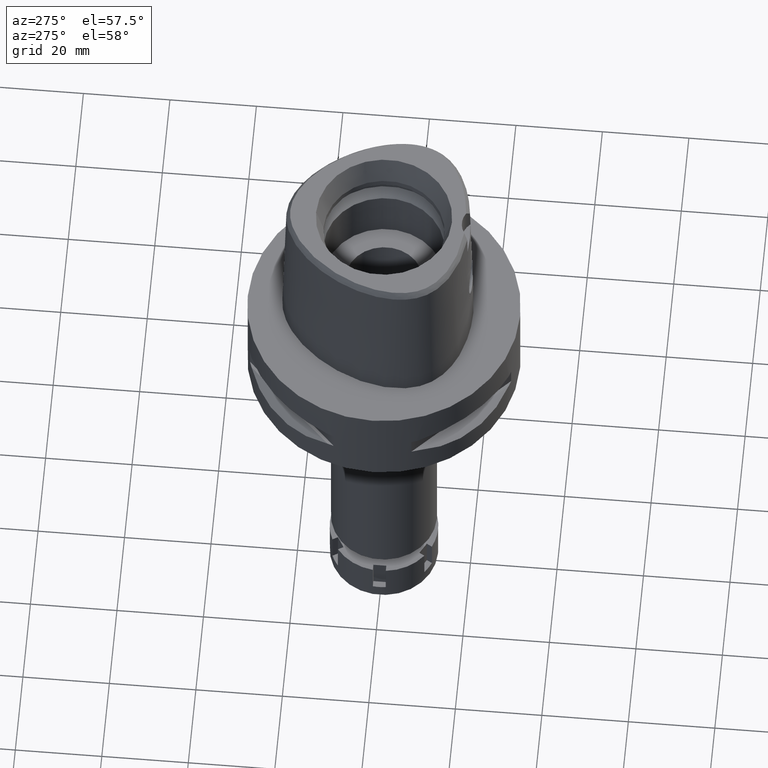
[diagram: clean part render]
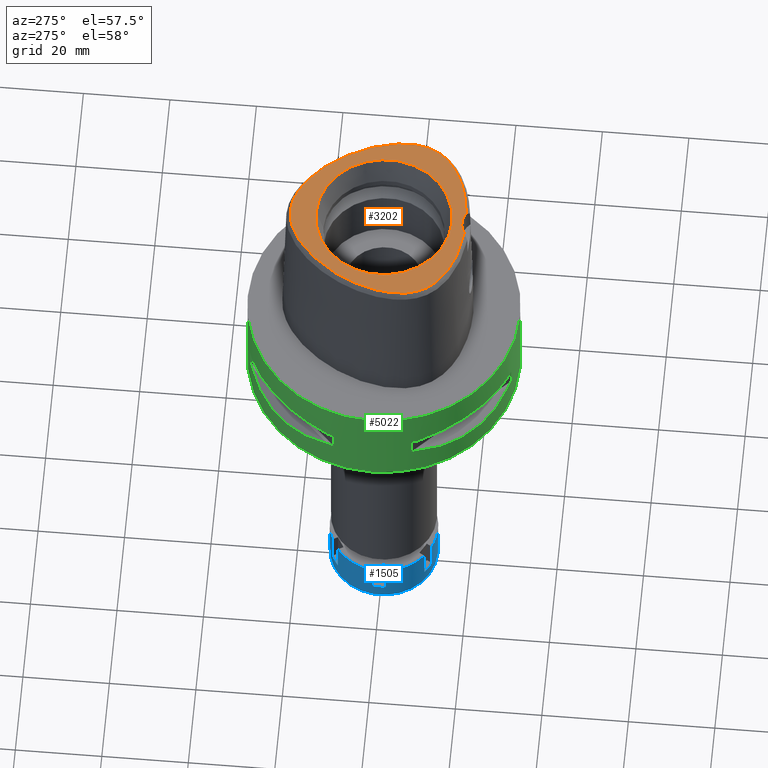
[diagram: same view with three faces highlighted in distinct colors, each labeled with its STEP entity id]
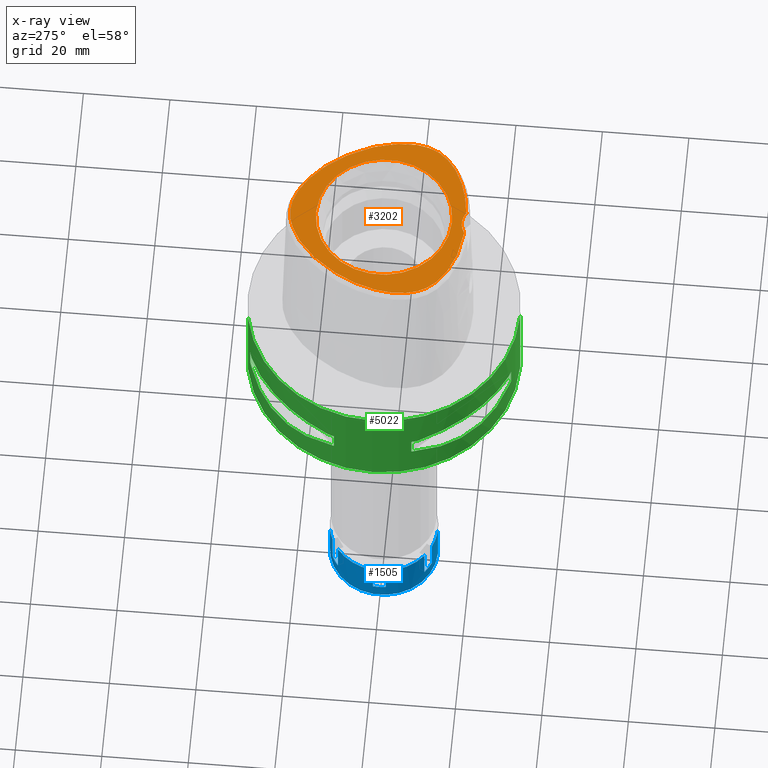
[diagram: x-ray of the same camera — body ghosted, the three highlighted faces saturated]
A machine part, auxiliary view with three faces highlighted in distinct colors.
The next image is the same camera in x-ray (body ghosted, the three faces saturated) — at least one of them is partly hidden behind the body in this view.
Their STEP definitions:

[orange] entity #3202 — the highlighted planar face has unit normal (0, 0, 1).
#28 = EDGE_LOOP ( 'NONE', ( #3176, #3464 ) ) ;
#33 = AXIS2_PLACEMENT_3D ( 'NONE', #2388, #1115, #3232 ) ;
#79 = VERTEX_POINT ( 'NONE', #3053 ) ;
#84 = CARTESIAN_POINT ( 'NONE',  ( 15.72078707640232942, -14.29615620309169621, 37.99999999999786837 ) ) ;
#274 = ORIENTED_EDGE ( 'NONE', *, *, #1234, .F. ) ;
#275 = CARTESIAN_POINT ( 'NONE',  ( -6.188376196366175641, -18.31830638231177844, 37.99999999999905498 ) ) ;
#306 = CARTESIAN_POINT ( 'NONE',  ( -17.91005512243697240, -12.13778127739998602, 38.00000000000429878 ) ) ;
#308 = DIRECTION ( 'NONE',  ( 0.0000000000000000000, 0.0000000000000000000, 1.000000000000000000 ) ) ;
#341 = CARTESIAN_POINT ( 'NONE',  ( 20.36412151360758216, -5.276385427454227894, 37.99999999999434408 ) ) ;
#357 = CARTESIAN_POINT ( 'NONE',  ( -18.24302769442177308, 5.671232572958060381, 38.00000000000056843 ) ) ;
#388 = CARTESIAN_POINT ( 'NONE',  ( -16.36032397154049178, -13.76458520345197556, 38.00000000000538591 ) ) ;
#396 = CARTESIAN_POINT ( 'NONE',  ( 13.40430406168808375, 13.76274261013138478, 37.99999999999766942 ) ) ;
#403 = DIRECTION ( 'NONE',  ( 0.0000000000000000000, 1.000000000000000000, 0.0000000000000000000 ) ) ;
#420 = CARTESIAN_POINT ( 'NONE',  ( -10.48962422759856850, 16.86631853279065751, 38.00000000000543565 ) ) ;
#567 = CARTESIAN_POINT ( 'NONE',  ( -0.6498990081534831154, 21.67378274708348229, 37.99999999999515410 ) ) ;
#696 = B_SPLINE_CURVE_WITH_KNOTS ( 'NONE', 3,
 ( #1614, #1591, #2004, #4221, #4651, #800, #2087, #715, #5017, #2117, #3832, #3410, #1160, #2466, #3799, #745, #1675, #396, #3383, #4166, #3327, #5550, #2877, #4588, #4251, #1183, #4620, #2904, #824, #5098, #774, #2495, #341, #1245, #2062, #3769, #2959, #4676, #2545, #1700, #2144, #5263, #1387, #4784, #3914, #1331, #84, #3046, #3539, #3881, #3436, #3465, #2170, #5154, #959, #2989, #1802, #1299, #2679, #3021 ),
 .UNSPECIFIED., .F., .F.,
 ( 4, 1, 1, 1, 1, 1, 1, 1, 1, 1, 1, 1, 1, 1, 1, 1, 1, 1, 1, 1, 1, 1, 1, 1, 1, 1, 1, 1, 1, 1, 1, 1, 1, 1, 1, 1, 1, 1, 1, 1, 1, 1, 1, 1, 1, 1, 1, 1, 1, 1, 1, 1, 1, 1, 1, 1, 1, 4 ),
 ( 0.0000000000000000000, 0.01775854187129999318, 0.03551708374169992855, 0.05327562561200005486, 0.07103416748239999023, 0.08879270935270000553, 0.1065512512231000519, 0.1243097930933999562, 0.1420683349638000026, 0.1598268768341000179, 0.1775854187044000332, 0.1953439605747999686, 0.2131025024450999839, 0.2308610443155000302, 0.2486195861857999345, 0.2663781280563000120, 0.2841366699266000273, 0.3018952117970000737, 0.3196537536672999780, 0.3374122955377000244, 0.3551708374080000397, 0.3729293792782999439, 0.3906879211486999903, 0.4084464630190000056, 0.4262050048894000520, 0.4439635467596999563, 0.4617220886301000027, 0.4794806305004000180, 0.4972391723707999533, 0.5149977142410999686, 0.5327562561113999839, 0.5505147979818000303, 0.5682733398521000456, 0.5860318817224999810, 0.6037904235927999963, 0.6215489654632000427, 0.6393075073334999470, 0.6570660492038999934, 0.6748245910742000087, 0.6925831329445000240, 0.7103416748149000703, 0.7281002166851999746, 0.7458587585556000210, 0.7636173004259000363, 0.7813758422962999717, 0.7991343841665999870, 0.8168929260370000334, 0.8346514679073000487, 0.8524100097776999840, 0.8701685516479999993, 0.8879270935183000146, 0.9056856353886799660, 0.9234441772589799813, 0.9412027191293600437, 0.9589612609997000270, 0.9767198028700500023, 0.9944783447403919840, 1.000000000000000000 ),
 .UNSPECIFIED. ) ;
#715 = CARTESIAN_POINT ( 'NONE',  ( 4.255661039972427950, 20.86618068829808337, 37.99999999999293010 ) ) ;
#735 = CARTESIAN_POINT ( 'NONE',  ( -16.93638123745181900, -13.22593246128085021, 37.99999999999675282 ) ) ;
#745 = CARTESIAN_POINT ( 'NONE',  ( 11.46587147800059725, 15.92717600802842703, 37.99999999999953104 ) ) ;
#774 = CARTESIAN_POINT ( 'NONE',  ( 20.38292172607782859, -3.276278498261265160, 37.99999999999852918 ) ) ;
#791 = CARTESIAN_POINT ( 'NONE',  ( -19.98419490691485123, -7.809898894995401797, 38.00000000000287059 ) ) ;
#800 = CARTESIAN_POINT ( 'NONE',  ( 2.736932690726774808, 21.34527940056963047, 37.99999999999918998 ) ) ;
#824 = CARTESIAN_POINT ( 'NONE',  ( 20.15982952132271677, -1.007721426051230607, 37.99999999999911893 ) ) ;
#844 = CARTESIAN_POINT ( 'NONE',  ( -13.40435640711438658, 13.76268382997440298, 37.99999999999984368 ) ) ;
#959 = CARTESIAN_POINT ( 'NONE',  ( 7.606839420237586857, -18.00827588386539446, 37.99999999999665334 ) ) ;
#1000 = PLANE ( 'NONE',  #33 ) ;
#1115 = DIRECTION ( 'NONE',  ( 0.0000000000000000000, 0.0000000000000000000, 1.000000000000000000 ) ) ;
#1124 = CARTESIAN_POINT ( 'NONE',  ( -3.522896839654192203, -18.70811514173785639, 37.99999999999594991 ) ) ;
#1160 = CARTESIAN_POINT ( 'NONE',  ( 8.578848111817283240, 18.44609846599041347, 37.99999999999532463 ) ) ;
#1183 = CARTESIAN_POINT ( 'NONE',  ( 19.26272899268398220, 2.870227893749653703, 37.99999999999879208 ) ) ;
#1208 = VERTEX_POINT ( 'NONE', #5518 ) ;
#1209 = CARTESIAN_POINT ( 'NONE',  ( -19.94188961899549284, 0.2242544969876116567, 38.00000000000056133 ) ) ;
#1234 = EDGE_CURVE ( 'NONE', #4028, #2988, #696, .T. ) ;
#1245 = CARTESIAN_POINT ( 'NONE',  ( 20.27923816685401093, -6.179850483268034544, 38.00000000000326850 ) ) ;
#1263 = CARTESIAN_POINT ( 'NONE',  ( -9.524337278001334894, 17.70558492631205993, 37.99999999999950262 ) ) ;
#1299 = CARTESIAN_POINT ( 'NONE',  ( 3.529311563348828784, -18.70747079910202970, 38.00000000000078870 ) ) ;
#1320 = EDGE_LOOP ( 'NONE', ( #274, #2179, #1577 ) ) ;
#1331 = CARTESIAN_POINT ( 'NONE',  ( 16.36283630828310010, -13.76236604535487729, 37.99999999999704414 ) ) ;
#1387 = CARTESIAN_POINT ( 'NONE',  ( 17.91165267838890784, -12.13575389397913717, 38.00000000000568434 ) ) ;
#1527 = CARTESIAN_POINT ( 'NONE',  ( -2.735698246182753479, 21.34559102902670702, 38.00000000000395772 ) ) ;
#1548 = CARTESIAN_POINT ( 'NONE',  ( -18.79649882724703147, 4.256255933891218035, 37.99999999999836575 ) ) ;
#1577 = ORIENTED_EDGE ( 'NONE', *, *, #5223, .F. ) ;
#1581 = CARTESIAN_POINT ( 'NONE',  ( -20.15090095365027878, -7.024227649787052385, 38.00000000000519407 ) ) ;
#1591 = CARTESIAN_POINT ( 'NONE',  ( 0.2185816947241228103, 21.68728795389646891, 37.99999999999909051 ) ) ;
#1614 = CARTESIAN_POINT ( 'NONE',  ( -3.470663397227999930E-11, 21.68728795390000030, 38.00000000000000000 ) ) ;
#1635 = CARTESIAN_POINT ( 'NONE',  ( -12.37132652997469862, -16.34104299087971768, 38.00000000000121503 ) ) ;
#1636 = B_SPLINE_CURVE_WITH_KNOTS ( 'NONE', 3,
 ( #2429, #4978, #1124, #2843, #275, #4158, #5509, #2108, #3377, #1635, #2053, #3737, #2511, #5458, #388, #735, #1994, #306, #4580, #4554, #2029, #3761, #5427, #5482, #791, #1581, #3346, #5009, #2869, #5064, #5394, #2457, #1209, #2926, #2951, #1548, #357, #4644, #4669, #2078, #3264, #4130, #844, #3825, #1695, #420, #1263, #4275, #4692, #2979, #5544, #3402, #2568, #5116, #1527, #3997, #4534, #567, #4841, #4897 ),
 .UNSPECIFIED., .F., .F.,
 ( 4, 1, 1, 1, 1, 1, 1, 1, 1, 1, 1, 1, 1, 1, 1, 1, 1, 1, 1, 1, 1, 1, 1, 1, 1, 1, 1, 1, 1, 1, 1, 1, 1, 1, 1, 1, 1, 1, 1, 1, 1, 1, 1, 1, 1, 1, 1, 1, 1, 1, 1, 1, 1, 1, 1, 1, 1, 4 ),
 ( 0.0000000000000000000, 0.005420919554200098744, 0.02318126027639999531, 0.04094160099879995407, 0.05870194172099996166, 0.07646228244330000035, 0.09422262316550000794, 0.1119829638877999356, 0.1297433046099999432, 0.1475036453321999508, 0.1652639860544999895, 0.1830243267768000281, 0.2007846674991000668, 0.2185450082212999634, 0.2363053489436000021, 0.2540656896658000097, 0.2718260303881000484, 0.2895863711103000560, 0.3073467118325999836, 0.3251070525547999912, 0.3428673932771000299, 0.3606277339994000686, 0.3783880747216000762, 0.3961484154438998928, 0.4139087561661000114, 0.4316690968884000501, 0.4494294376106000577, 0.4671897783328999854, 0.4849501190552000240, 0.5027104597774000316, 0.5204708004996999593, 0.5382311412219000779, 0.5559914819442000056, 0.5737518226664000132, 0.5915121633886999408, 0.6092725041108999484, 0.6270328448331999871, 0.6447931855555000258, 0.6625535262777000334, 0.6803138669999999610, 0.6980742077221999686, 0.7158345484445000073, 0.7335948891667000149, 0.7513552298890000536, 0.7691155706112000612, 0.7868759113336000199, 0.8046362520558000275, 0.8223965927780999552, 0.8401569335002999628, 0.8579172742224999704, 0.8756776149448000091, 0.8934379556670000166, 0.9111982963893099363, 0.9289586371115700070, 0.9467189778338299666, 0.9644793185560800453, 0.9822396592783400049, 1.000000000000000000 ),
 .UNSPECIFIED. ) ;
#1675 = CARTESIAN_POINT ( 'NONE',  ( 12.44125753246307475, 14.89118158853244545, 37.99999999999464251 ) ) ;
#1695 = CARTESIAN_POINT ( 'NONE',  ( -11.46564124494353898, 15.92741340513042658, 37.99999999999533173 ) ) ;
#1700 = CARTESIAN_POINT ( 'NONE',  ( 18.99619228226660539, -10.46780014453487340, 37.99999999999862865 ) ) ;
#1717 = EDGE_CURVE ( 'NONE', #4299, #4028, #1636, .T. ) ;
#1802 = CARTESIAN_POINT ( 'NONE',  ( 4.715576077241841801, -18.56597918135627978, 37.99999999999164402 ) ) ;
#1994 = CARTESIAN_POINT ( 'NONE',  ( -17.45119705494453655, -12.68365517585878877, 38.00000000000417089 ) ) ;
#2004 = CARTESIAN_POINT ( 'NONE',  ( 0.6513209347955825068, 21.67370899611362489, 38.00000000000043343 ) ) ;
#2029 = CARTESIAN_POINT ( 'NONE',  ( -18.99520880204266504, -10.46968343926507927, 38.00000000000586198 ) ) ;
#2053 = CARTESIAN_POINT ( 'NONE',  ( -13.33457781969798894, -15.85148397417350807, 38.00000000000213163 ) ) ;
#2062 = CARTESIAN_POINT ( 'NONE',  ( 20.15127154947472832, -7.022178451341724248, 38.00000000000136424 ) ) ;
#2078 = CARTESIAN_POINT ( 'NONE',  ( -16.09805956313385167, 9.908742513516966000, 38.00000000000242295 ) ) ;
#2087 = CARTESIAN_POINT ( 'NONE',  ( 3.482188079160064120, 21.13472718027785291, 37.99999999999235456 ) ) ;
#2108 = CARTESIAN_POINT ( 'NONE',  ( -10.17136073855316347, -17.24644253470267685, 38.00000000000154898 ) ) ;
#2117 = CARTESIAN_POINT ( 'NONE',  ( 5.894487344450838329, 20.13186406532411610, 37.99999999999071321 ) ) ;
#2144 = CARTESIAN_POINT ( 'NONE',  ( 18.67722910598513408, -11.03372143228007474, 38.00000000000263611 ) ) ;
#2170 = CARTESIAN_POINT ( 'NONE',  ( 10.17751632997955369, -17.24426134458984805, 37.99999999999234035 ) ) ;
#2179 = ORIENTED_EDGE ( 'NONE', *, *, #1717, .F. ) ;
#2388 = CARTESIAN_POINT ( 'NONE',  ( 0.0000000000000000000, 0.0000000000000000000, 38.00000000000000000 ) ) ;
#2429 = CARTESIAN_POINT ( 'NONE',  ( -2.682279906006999948, -18.78035848609999903, 38.00000000000000000 ) ) ;
#2457 = CARTESIAN_POINT ( 'NONE',  ( -20.16012968311730447, -1.009698174524227943, 38.00000000000265743 ) ) ;
#2466 = CARTESIAN_POINT ( 'NONE',  ( 9.524842839488838919, 17.70516372194470023, 38.00000000000159162 ) ) ;
#2495 = CARTESIAN_POINT ( 'NONE',  ( 20.40062138795185831, -4.309334958867604648, 38.00000000000292033 ) ) ;
#2511 = CARTESIAN_POINT ( 'NONE',  ( -15.00295592773690601, -14.82617991125929002, 38.00000000000457590 ) ) ;
#2545 = CARTESIAN_POINT ( 'NONE',  ( 19.28677546797288755, -9.867757137506341536, 37.99999999999842970 ) ) ;
#2568 = CARTESIAN_POINT ( 'NONE',  ( -4.254559144977749341, 20.86660163696912207, 37.99999999999319300 ) ) ;
#2679 = CARTESIAN_POINT ( 'NONE',  ( 2.845098933833467569, -18.76733062686171039, 37.99999999999801048 ) ) ;
#2773 = FACE_BOUND ( 'NONE', #28, .T. ) ;
#2833 = CARTESIAN_POINT ( 'NONE',  ( 0.0000000000000000000, 0.0000000000000000000, 38.00000000000000000 ) ) ;
#2843 = CARTESIAN_POINT ( 'NONE',  ( -4.706994425064479515, -18.56721852572920284, 38.00000000000706990 ) ) ;
#2869 = CARTESIAN_POINT ( 'NONE',  ( -20.40060226222697537, -4.311417605381627105, 38.00000000000179057 ) ) ;
#2877 = CARTESIAN_POINT ( 'NONE',  ( 17.60373714028315106, 7.099883643192963945, 37.99999999999521805 ) ) ;
#2904 = CARTESIAN_POINT ( 'NONE',  ( 19.94150023627768675, 0.2261566111946422819, 38.00000000000073896 ) ) ;
#2916 = DIRECTION ( 'NONE',  ( 0.0000000000000000000, -1.000000000000000000, 0.0000000000000000000 ) ) ;
#2926 = CARTESIAN_POINT ( 'NONE',  ( -19.64434054693159482, 1.520253387635855935, 37.99999999999401723 ) ) ;
#2951 = CARTESIAN_POINT ( 'NONE',  ( -19.26324493738854571, 2.868570891456371896, 38.00000000000054712 ) ) ;
#2959 = CARTESIAN_POINT ( 'NONE',  ( 19.78323211892716316, -8.541156231035650137, 37.99999999999796785 ) ) ;
#2979 = CARTESIAN_POINT ( 'NONE',  ( -6.759433772717006406, 19.65454812513149108, 37.99999999999430145 ) ) ;
#2988 = VERTEX_POINT ( 'NONE', #3776 ) ;
#2989 = CARTESIAN_POINT ( 'NONE',  ( 6.196495988004087074, -18.31673538864638928, 37.99999999999992895 ) ) ;
#3021 = CARTESIAN_POINT ( 'NONE',  ( 2.682287482605000051, -18.78036330228999873, 38.00000000000000000 ) ) ;
#3046 = CARTESIAN_POINT ( 'NONE',  ( 15.00628712263287490, -14.82385870794858462, 37.99999999998909317 ) ) ;
#3053 = CARTESIAN_POINT ( 'NONE',  ( 0.0000000000000000000, -15.71487483155999776, 38.00000000000000000 ) ) ;
#3171 = FACE_OUTER_BOUND ( 'NONE', #1320, .T. ) ;
#3176 = ORIENTED_EDGE ( 'NONE', *, *, #4739, .F. ) ;
#3200 = EDGE_CURVE ( 'NONE', #1208, #79, #5158, .T. ) ;
#3202 = ADVANCED_FACE ( 'NONE', ( #3171, #2773 ), #1000, .T. ) ;
#3232 = DIRECTION ( 'NONE',  ( 1.000000000000000000, 0.0000000000000000000, 0.0000000000000000000 ) ) ;
#3264 = CARTESIAN_POINT ( 'NONE',  ( -15.24692477332546581, 11.25717358966499404, 38.00000000000522249 ) ) ;
#3327 = CARTESIAN_POINT ( 'NONE',  ( 16.09765529146523733, 9.909410920132719625, 37.99999999999265299 ) ) ;
#3346 = CARTESIAN_POINT ( 'NONE',  ( -20.27898581532539168, -6.181921586189740303, 37.99999999999997158 ) ) ;
#3366 = AXIS2_PLACEMENT_3D ( 'NONE', #2833, #5053, #2916 ) ;
#3377 = CARTESIAN_POINT ( 'NONE',  ( -11.31790883121150770, -16.80796958613568393, 37.99999999999768363 ) ) ;
#3383 = CARTESIAN_POINT ( 'NONE',  ( 14.34383722811319473, 12.54786717290211584, 37.99999999999371170 ) ) ;
#3402 = CARTESIAN_POINT ( 'NONE',  ( -5.058220461389485223, 20.53445508814432330, 38.00000000000070344 ) ) ;
#3410 = CARTESIAN_POINT ( 'NONE',  ( 7.655962789343639940, 19.09402979099830944, 38.00000000000166978 ) ) ;
#3417 = CARTESIAN_POINT ( 'NONE',  ( 0.0000000000000000000, 0.0000000000000000000, 38.00000000000000000 ) ) ;
#3436 = CARTESIAN_POINT ( 'NONE',  ( 12.37622418510146183, -16.33871033285755914, 37.99999999999547384 ) ) ;
#3464 = ORIENTED_EDGE ( 'NONE', *, *, #3200, .F. ) ;
#3465 = CARTESIAN_POINT ( 'NONE',  ( 11.32341394162874515, -16.80569392800287076, 37.99999999999108979 ) ) ;
#3486 = CARTESIAN_POINT ( 'NONE',  ( -2.682279906006999948, -18.78035848609999903, 38.00000000000000000 ) ) ;
#3539 = CARTESIAN_POINT ( 'NONE',  ( 14.21382211798846917, -15.34284287400694247, 37.99999999999710099 ) ) ;
#3737 = CARTESIAN_POINT ( 'NONE',  ( -14.21001600787826646, -15.34519100085697829, 37.99999999999928946 ) ) ;
#3761 = CARTESIAN_POINT ( 'NONE',  ( -19.28591707036567016, -9.869682450886354985, 37.99999999999527489 ) ) ;
#3769 = CARTESIAN_POINT ( 'NONE',  ( 19.98468477323076442, -7.807876343103687056, 37.99999999999347722 ) ) ;
#3776 = CARTESIAN_POINT ( 'NONE',  ( 2.682287482605000051, -18.78036330228999873, 38.00000000000000000 ) ) ;
#3799 = CARTESIAN_POINT ( 'NONE',  ( 10.48999540691338161, 16.86597469870024923, 37.99999999999693756 ) ) ;
#3825 = CARTESIAN_POINT ( 'NONE',  ( -12.44116897271067756, 14.89128547409919356, 38.00000000000249401 ) ) ;
#3832 = CARTESIAN_POINT ( 'NONE',  ( 6.760281394351546957, 19.65404668909912189, 37.99999999999734968 ) ) ;
#3881 = CARTESIAN_POINT ( 'NONE',  ( 13.33890749495965267, -15.84912955619992303, 37.99999999999315037 ) ) ;
#3914 = CARTESIAN_POINT ( 'NONE',  ( 16.93855157778266474, -13.22377441789277874, 37.99999999999524647 ) ) ;
#3997 = CARTESIAN_POINT ( 'NONE',  ( -2.017025177696412541, 21.50280829367946112, 37.99999999999697309 ) ) ;
#4028 = VERTEX_POINT ( 'NONE', #4104 ) ;
#4076 = DIRECTION ( 'NONE',  ( 0.0000000000000000000, 1.000000000000000000, 0.0000000000000000000 ) ) ;
#4104 = CARTESIAN_POINT ( 'NONE',  ( -3.470663397227999930E-11, 21.68728795390000030, 38.00000000000000000 ) ) ;
#4130 = CARTESIAN_POINT ( 'NONE',  ( -14.34402387965958425, 12.54761970512458902, 38.00000000000186873 ) ) ;
#4158 = CARTESIAN_POINT ( 'NONE',  ( -7.599370508970772597, -18.01010694911701293, 38.00000000000555644 ) ) ;
#4166 = CARTESIAN_POINT ( 'NONE',  ( 15.24661770199256061, 11.25762885478087938, 37.99999999999820233 ) ) ;
#4221 = CARTESIAN_POINT ( 'NONE',  ( 1.325020189552825967, 21.61081414409370538, 37.99999999999596412 ) ) ;
#4251 = CARTESIAN_POINT ( 'NONE',  ( 18.79595068776453104, 4.257753965102360816, 37.99999999999854339 ) ) ;
#4257 = DIRECTION ( 'NONE',  ( 0.0000000000000000000, 0.0000000000000000000, 1.000000000000000000 ) ) ;
#4268 = AXIS2_PLACEMENT_3D ( 'NONE', #5013, #308, #4076 ) ;
#4275 = CARTESIAN_POINT ( 'NONE',  ( -8.578220530113673803, 18.44656747109344153, 38.00000000000217426 ) ) ;
#4299 = VERTEX_POINT ( 'NONE', #3486 ) ;
#4361 = CIRCLE ( 'NONE', #4268, 5.000000000000000888 ) ;
#4534 = CARTESIAN_POINT ( 'NONE',  ( -1.323674540693972945, 21.61098849315968806, 38.00000000000163425 ) ) ;
#4554 = CARTESIAN_POINT ( 'NONE',  ( -18.67608643721881023, -11.03561202290776144, 37.99999999999932498 ) ) ;
#4580 = CARTESIAN_POINT ( 'NONE',  ( -18.31748213707681572, -11.58791794387864016, 37.99999999999729994 ) ) ;
#4588 = CARTESIAN_POINT ( 'NONE',  ( 18.24247239569745460, 5.672548708071999179, 37.99999999999782574 ) ) ;
#4620 = CARTESIAN_POINT ( 'NONE',  ( 19.64387775268512826, 1.522048414458223364, 37.99999999999723599 ) ) ;
#4644 = CARTESIAN_POINT ( 'NONE',  ( -17.60426951087019276, 7.098774535281792808, 38.00000000000088818 ) ) ;
#4651 = CARTESIAN_POINT ( 'NONE',  ( 2.018320379028521572, 21.50256508436072167, 37.99999999999425881 ) ) ;
#4669 = CARTESIAN_POINT ( 'NONE',  ( -16.88647904405455691, 8.517821442302757617, 38.00000000000560618 ) ) ;
#4676 = CARTESIAN_POINT ( 'NONE',  ( 19.54993126781950252, -9.226212439885943084, 37.99999999999590017 ) ) ;
#4692 = CARTESIAN_POINT ( 'NONE',  ( -7.655222869372122929, 19.09452359226416718, 37.99999999999541700 ) ) ;
#4739 = EDGE_CURVE ( 'NONE', #79, #1208, #5250, .T. ) ;
#4784 = CARTESIAN_POINT ( 'NONE',  ( 17.45306278053535820, -12.68156296993468146, 37.99999999999722888 ) ) ;
#4841 = CARTESIAN_POINT ( 'NONE',  ( -0.2181979014508441672, 21.68728795389390740, 37.99999999999836575 ) ) ;
#4878 = AXIS2_PLACEMENT_3D ( 'NONE', #3417, #4257, #403 ) ;
#4897 = CARTESIAN_POINT ( 'NONE',  ( -3.470663397227999930E-11, 21.68728795390000030, 38.00000000000000000 ) ) ;
#4978 = CARTESIAN_POINT ( 'NONE',  ( -2.841965291530533566, -18.76757795571699816, 37.99999999999850786 ) ) ;
#5009 = CARTESIAN_POINT ( 'NONE',  ( -20.36398648679344348, -5.278470727085266212, 37.99999999999601386 ) ) ;
#5013 = CARTESIAN_POINT ( 'NONE',  ( 0.0000000000000000000, -23.00000000000000000, 38.00000000000000000 ) ) ;
#5017 = CARTESIAN_POINT ( 'NONE',  ( 5.059249257020709045, 20.53399274679074082, 37.99999999999307931 ) ) ;
#5053 = DIRECTION ( 'NONE',  ( 0.0000000000000000000, 0.0000000000000000000, 1.000000000000000000 ) ) ;
#5064 = CARTESIAN_POINT ( 'NONE',  ( -20.38301517462939216, -3.278344853327830322, 38.00000000000496669 ) ) ;
#5098 = CARTESIAN_POINT ( 'NONE',  ( 20.30478359881593775, -2.175347700950313712, 37.99999999999387512 ) ) ;
#5116 = CARTESIAN_POINT ( 'NONE',  ( -3.481017203588782305, 21.13509756881435919, 37.99999999999538858 ) ) ;
#5154 = CARTESIAN_POINT ( 'NONE',  ( 8.936919536467122782, -17.64796721715696393, 37.99999999999626965 ) ) ;
#5158 = CIRCLE ( 'NONE', #4878, 15.71487483155999776 ) ;
#5223 = EDGE_CURVE ( 'NONE', #2988, #4299, #4361, .T. ) ;
#5250 = CIRCLE ( 'NONE', #3366, 15.71487483155999776 ) ;
#5263 = CARTESIAN_POINT ( 'NONE',  ( 18.31883910943392380, -11.58595831188296188, 37.99999999999462830 ) ) ;
#5394 = CARTESIAN_POINT ( 'NONE',  ( -20.30498420087106837, -2.177378896258387986, 38.00000000000387246 ) ) ;
#5427 = CARTESIAN_POINT ( 'NONE',  ( -19.54919922641949626, -9.228169790568482966, 38.00000000000306954 ) ) ;
#5458 = CARTESIAN_POINT ( 'NONE',  ( -15.71788912669348726, -14.29843101565845664, 37.99999999999736389 ) ) ;
#5482 = CARTESIAN_POINT ( 'NONE',  ( -19.78262210840617286, -8.543146992552619778, 38.00000000000316902 ) ) ;
#5509 = CARTESIAN_POINT ( 'NONE',  ( -8.930096025510042779, -17.65000298921500388, 38.00000000000387246 ) ) ;
#5518 = CARTESIAN_POINT ( 'NONE',  ( 0.0000000000000000000, 15.71487483155999776, 38.00000000000000000 ) ) ;
#5544 = CARTESIAN_POINT ( 'NONE',  ( -5.893543501601018697, 20.13235399351747290, 38.00000000000115108 ) ) ;
#5550 = CARTESIAN_POINT ( 'NONE',  ( 16.88599964843549728, 8.518708218770218110, 37.99999999999972289 ) ) ;

[blue] entity #1505 — the highlighted cylindrical surface (partial cylindrical patch) has radius 12.5 mm, axis along (0, 0, -1).
#34 = CARTESIAN_POINT ( 'NONE',  ( 0.0000000000000000000, -12.50000000000000000, 0.0000000000000000000 ) ) ;
#50 = ORIENTED_EDGE ( 'NONE', *, *, #3774, .F. ) ;
#54 = ORIENTED_EDGE ( 'NONE', *, *, #511, .T. ) ;
#153 = ORIENTED_EDGE ( 'NONE', *, *, #3092, .T. ) ;
#186 = AXIS2_PLACEMENT_3D ( 'NONE', #5285, #4889, #1962 ) ;
#191 = DIRECTION ( 'NONE',  ( -0.6003099942937818456, 0.7997674104081758939, 0.0000000000000000000 ) ) ;
#202 = CARTESIAN_POINT ( 'NONE',  ( -12.40967364599000078, 1.500000000000000000, 0.0000000000000000000 ) ) ;
#317 = CARTESIAN_POINT ( 'NONE',  ( -4.905798717318000435, 11.49709263010000093, -7.000000000000000000 ) ) ;
#324 = ORIENTED_EDGE ( 'NONE', *, *, #4636, .F. ) ;
#414 = EDGE_CURVE ( 'NONE', #3960, #1352, #3430, .T. ) ;
#458 = DIRECTION ( 'NONE',  ( 0.0000000000000000000, 0.0000000000000000000, -1.000000000000000000 ) ) ;
#511 = EDGE_CURVE ( 'NONE', #1938, #4883, #1891, .T. ) ;
#550 = DIRECTION ( 'NONE',  ( -0.9927738916792689938, 0.1199999999999962208, 0.0000000000000000000 ) ) ;
#560 = ORIENTED_EDGE ( 'NONE', *, *, #4214, .F. ) ;
#700 = DIRECTION ( 'NONE',  ( 0.0000000000000000000, 0.0000000000000000000, 1.000000000000000000 ) ) ;
#722 = CARTESIAN_POINT ( 'NONE',  ( 0.0000000000000000000, 0.0000000000000000000, 0.0000000000000000000 ) ) ;
#723 = EDGE_CURVE ( 'NONE', #2165, #5545, #1894, .T. ) ;
#763 = VERTEX_POINT ( 'NONE', #4129 ) ;
#772 = AXIS2_PLACEMENT_3D ( 'NONE', #4683, #1365, #2154 ) ;
#843 = CIRCLE ( 'NONE', #3710, 12.50000000000000355 ) ;
#847 = CARTESIAN_POINT ( 'NONE',  ( -12.40967364599000078, -1.500000000000000000, -7.000000000000000000 ) ) ;
#902 = ORIENTED_EDGE ( 'NONE', *, *, #5389, .T. ) ;
#948 = CIRCLE ( 'NONE', #4446, 12.50000000000000000 ) ;
#1005 = EDGE_LOOP ( 'NONE', ( #50, #153, #4485, #5279, #3672, #4958, #324, #4065, #2839, #4755, #560, #902, #4917, #1820, #1293, #54 ) ) ;
#1031 = VECTOR ( 'NONE', #5035, 1000.000000000000000 ) ;
#1045 = CARTESIAN_POINT ( 'NONE',  ( -7.503874928671999456, 9.997092630101999333, -7.000000000000000000 ) ) ;
#1114 = VECTOR ( 'NONE', #1923, 1000.000000000000000 ) ;
#1143 = DIRECTION ( 'NONE',  ( 0.0000000000000000000, 0.0000000000000000000, -1.000000000000000000 ) ) ;
#1293 = ORIENTED_EDGE ( 'NONE', *, *, #1776, .F. ) ;
#1303 = LINE ( 'NONE', #34, #1757 ) ;
#1352 = VERTEX_POINT ( 'NONE', #2628 ) ;
#1365 = DIRECTION ( 'NONE',  ( 0.0000000000000000000, 0.0000000000000000000, -1.000000000000000000 ) ) ;
#1390 = DIRECTION ( 'NONE',  ( -0.6003099942937818456, -0.7997674104081758939, 0.0000000000000000000 ) ) ;
#1441 = DIRECTION ( 'NONE',  ( 0.0000000000000000000, 0.0000000000000000000, 1.000000000000000000 ) ) ;
#1505 = ADVANCED_FACE ( 'NONE', ( #3646 ), #4492, .T. ) ;
#1519 = VERTEX_POINT ( 'NONE', #1521 ) ;
#1521 = CARTESIAN_POINT ( 'NONE',  ( -4.905798717319999724, -11.49709263010000093, -7.000000000000000000 ) ) ;
#1571 = AXIS2_PLACEMENT_3D ( 'NONE', #3105, #5238, #1390 ) ;
#1669 = CIRCLE ( 'NONE', #772, 12.49999999999999822 ) ;
#1757 = VECTOR ( 'NONE', #458, 1000.000000000000000 ) ;
#1776 = EDGE_CURVE ( 'NONE', #1938, #4587, #4952, .T. ) ;
#1820 = ORIENTED_EDGE ( 'NONE', *, *, #3405, .T. ) ;
#1887 = CARTESIAN_POINT ( 'NONE',  ( -12.40967364599000078, -1.500000000000000000, 0.0000000000000000000 ) ) ;
#1891 = CIRCLE ( 'NONE', #2801, 12.50000000000000178 ) ;
#1894 = CIRCLE ( 'NONE', #3516, 12.50000000000000000 ) ;
#1912 = VECTOR ( 'NONE', #3591, 1000.000000000000000 ) ;
#1923 = DIRECTION ( 'NONE',  ( 0.0000000000000000000, 0.0000000000000000000, -1.000000000000000000 ) ) ;
#1938 = VERTEX_POINT ( 'NONE', #3220 ) ;
#1941 = DIRECTION ( 'NONE',  ( 0.0000000000000000000, 0.0000000000000000000, -1.000000000000000000 ) ) ;
#1962 = DIRECTION ( 'NONE',  ( 0.0000000000000000000, -1.000000000000000000, 0.0000000000000000000 ) ) ;
#2105 = CIRCLE ( 'NONE', #2564, 12.50000000000000000 ) ;
#2154 = DIRECTION ( 'NONE',  ( -0.3924638973856165447, -0.9197674104081380309, 0.0000000000000000000 ) ) ;
#2165 = VERTEX_POINT ( 'NONE', #2381 ) ;
#2172 = AXIS2_PLACEMENT_3D ( 'NONE', #3599, #1941, #2318 ) ;
#2318 = DIRECTION ( 'NONE',  ( 0.0000000000000000000, -1.000000000000000000, 0.0000000000000000000 ) ) ;
#2337 = CARTESIAN_POINT ( 'NONE',  ( 0.0000000000000000000, -12.50000000000000000, 0.0000000000000000000 ) ) ;
#2381 = CARTESIAN_POINT ( 'NONE',  ( 0.0000000000000000000, 12.50000000000000000, -10.30000000000000071 ) ) ;
#2445 = DIRECTION ( 'NONE',  ( 0.0000000000000000000, 0.0000000000000000000, -1.000000000000000000 ) ) ;
#2491 = CARTESIAN_POINT ( 'NONE',  ( -12.40967364599000078, 1.500000000000000000, -7.000000000000000000 ) ) ;
#2527 = LINE ( 'NONE', #4571, #2659 ) ;
#2564 = AXIS2_PLACEMENT_3D ( 'NONE', #3255, #4429, #550 ) ;
#2573 = DIRECTION ( 'NONE',  ( 0.0000000000000000000, 0.0000000000000000000, 1.000000000000000000 ) ) ;
#2586 = CARTESIAN_POINT ( 'NONE',  ( 0.0000000000000000000, -12.50000000000000000, -10.30000000000000071 ) ) ;
#2628 = CARTESIAN_POINT ( 'NONE',  ( -4.905798717319999724, -11.49709263010000093, 0.0000000000000000000 ) ) ;
#2656 = CARTESIAN_POINT ( 'NONE',  ( 0.0000000000000000000, 0.0000000000000000000, -10.30000000000000071 ) ) ;
#2659 = VECTOR ( 'NONE', #700, 1000.000000000000000 ) ;
#2801 = AXIS2_PLACEMENT_3D ( 'NONE', #2854, #3191, #191 ) ;
#2803 = CARTESIAN_POINT ( 'NONE',  ( -12.40967364599000078, -1.500000000000000000, -7.000000000000000000 ) ) ;
#2839 = ORIENTED_EDGE ( 'NONE', *, *, #4494, .F. ) ;
#2854 = CARTESIAN_POINT ( 'NONE',  ( 0.0000000000000000000, 0.0000000000000000000, -7.000000000000000000 ) ) ;
#2866 = VERTEX_POINT ( 'NONE', #1887 ) ;
#2896 = VECTOR ( 'NONE', #1441, 1000.000000000000000 ) ;
#2968 = VERTEX_POINT ( 'NONE', #4995 ) ;
#3008 = VECTOR ( 'NONE', #3793, 1000.000000000000000 ) ;
#3092 = EDGE_CURVE ( 'NONE', #2968, #3931, #843, .T. ) ;
#3105 = CARTESIAN_POINT ( 'NONE',  ( 0.0000000000000000000, 0.0000000000000000000, 0.0000000000000000000 ) ) ;
#3191 = DIRECTION ( 'NONE',  ( 0.0000000000000000000, 0.0000000000000000000, -1.000000000000000000 ) ) ;
#3220 = CARTESIAN_POINT ( 'NONE',  ( -7.503874928671999456, 9.997092630101999333, -7.000000000000000000 ) ) ;
#3255 = CARTESIAN_POINT ( 'NONE',  ( 0.0000000000000000000, 0.0000000000000000000, 0.0000000000000000000 ) ) ;
#3298 = CARTESIAN_POINT ( 'NONE',  ( 0.0000000000000000000, 12.50000000000000000, 0.0000000000000000000 ) ) ;
#3310 = DIRECTION ( 'NONE',  ( -0.9927738916792689938, -0.1199999999999962208, 0.0000000000000000000 ) ) ;
#3322 = CARTESIAN_POINT ( 'NONE',  ( 0.0000000000000000000, 12.50000000000000000, 0.0000000000000000000 ) ) ;
#3337 = CARTESIAN_POINT ( 'NONE',  ( -7.503874928671999456, 9.997092630101999333, 0.0000000000000000000 ) ) ;
#3378 = CARTESIAN_POINT ( 'NONE',  ( -7.503874928671999456, -9.997092630101999333, 0.0000000000000000000 ) ) ;
#3405 = EDGE_CURVE ( 'NONE', #3820, #4587, #2105, .T. ) ;
#3430 = CIRCLE ( 'NONE', #2172, 12.50000000000000000 ) ;
#3437 = EDGE_CURVE ( 'NONE', #3820, #5212, #4059, .T. ) ;
#3506 = CARTESIAN_POINT ( 'NONE',  ( -7.503874928671999456, -9.997092630101999333, 0.0000000000000000000 ) ) ;
#3516 = AXIS2_PLACEMENT_3D ( 'NONE', #2656, #2573, #4304 ) ;
#3532 = CIRCLE ( 'NONE', #1571, 12.50000000000000178 ) ;
#3591 = DIRECTION ( 'NONE',  ( 0.0000000000000000000, 0.0000000000000000000, -1.000000000000000000 ) ) ;
#3599 = CARTESIAN_POINT ( 'NONE',  ( 0.0000000000000000000, 0.0000000000000000000, 0.0000000000000000000 ) ) ;
#3646 = FACE_OUTER_BOUND ( 'NONE', #1005, .T. ) ;
#3649 = LINE ( 'NONE', #3322, #1031 ) ;
#3669 = EDGE_CURVE ( 'NONE', #4099, #2866, #3532, .T. ) ;
#3672 = ORIENTED_EDGE ( 'NONE', *, *, #5049, .F. ) ;
#3710 = AXIS2_PLACEMENT_3D ( 'NONE', #722, #2445, #5103 ) ;
#3774 = EDGE_CURVE ( 'NONE', #2968, #4883, #4017, .T. ) ;
#3793 = DIRECTION ( 'NONE',  ( 0.0000000000000000000, 0.0000000000000000000, 1.000000000000000000 ) ) ;
#3820 = VERTEX_POINT ( 'NONE', #3918 ) ;
#3918 = CARTESIAN_POINT ( 'NONE',  ( -12.40967364599000078, 1.500000000000000000, 0.0000000000000000000 ) ) ;
#3931 = VERTEX_POINT ( 'NONE', #3298 ) ;
#3960 = VERTEX_POINT ( 'NONE', #2337 ) ;
#4017 = LINE ( 'NONE', #5289, #1912 ) ;
#4059 = LINE ( 'NONE', #202, #1114 ) ;
#4065 = ORIENTED_EDGE ( 'NONE', *, *, #4802, .T. ) ;
#4099 = VERTEX_POINT ( 'NONE', #3378 ) ;
#4129 = CARTESIAN_POINT ( 'NONE',  ( -7.503874928671999456, -9.997092630101999333, -7.000000000000000000 ) ) ;
#4193 = LINE ( 'NONE', #847, #3008 ) ;
#4214 = EDGE_CURVE ( 'NONE', #4326, #2866, #4193, .T. ) ;
#4304 = DIRECTION ( 'NONE',  ( 0.0000000000000000000, 1.000000000000000000, 0.0000000000000000000 ) ) ;
#4326 = VERTEX_POINT ( 'NONE', #2803 ) ;
#4429 = DIRECTION ( 'NONE',  ( 0.0000000000000000000, 0.0000000000000000000, -1.000000000000000000 ) ) ;
#4446 = AXIS2_PLACEMENT_3D ( 'NONE', #5473, #1143, #3310 ) ;
#4485 = ORIENTED_EDGE ( 'NONE', *, *, #5184, .T. ) ;
#4492 = CYLINDRICAL_SURFACE ( 'NONE', #186, 12.50000000000000000 ) ;
#4494 = EDGE_CURVE ( 'NONE', #4099, #763, #4809, .T. ) ;
#4571 = CARTESIAN_POINT ( 'NONE',  ( -4.905798717319999724, -11.49709263010000093, -7.000000000000000000 ) ) ;
#4587 = VERTEX_POINT ( 'NONE', #3337 ) ;
#4636 = EDGE_CURVE ( 'NONE', #1519, #1352, #2527, .T. ) ;
#4683 = CARTESIAN_POINT ( 'NONE',  ( 0.0000000000000000000, 0.0000000000000000000, -7.000000000000000000 ) ) ;
#4714 = VECTOR ( 'NONE', #5232, 1000.000000000000000 ) ;
#4755 = ORIENTED_EDGE ( 'NONE', *, *, #3669, .T. ) ;
#4802 = EDGE_CURVE ( 'NONE', #1519, #763, #1669, .T. ) ;
#4809 = LINE ( 'NONE', #3506, #4714 ) ;
#4883 = VERTEX_POINT ( 'NONE', #317 ) ;
#4889 = DIRECTION ( 'NONE',  ( 0.0000000000000000000, 0.0000000000000000000, -1.000000000000000000 ) ) ;
#4917 = ORIENTED_EDGE ( 'NONE', *, *, #3437, .F. ) ;
#4952 = LINE ( 'NONE', #1045, #2896 ) ;
#4958 = ORIENTED_EDGE ( 'NONE', *, *, #414, .T. ) ;
#4995 = CARTESIAN_POINT ( 'NONE',  ( -4.905798717318000435, 11.49709263010000093, 0.0000000000000000000 ) ) ;
#5035 = DIRECTION ( 'NONE',  ( 0.0000000000000000000, 0.0000000000000000000, -1.000000000000000000 ) ) ;
#5049 = EDGE_CURVE ( 'NONE', #3960, #5545, #1303, .T. ) ;
#5103 = DIRECTION ( 'NONE',  ( -0.3924638973854109314, 0.9197674104082257385, 0.0000000000000000000 ) ) ;
#5184 = EDGE_CURVE ( 'NONE', #3931, #2165, #3649, .T. ) ;
#5212 = VERTEX_POINT ( 'NONE', #2491 ) ;
#5232 = DIRECTION ( 'NONE',  ( 0.0000000000000000000, 0.0000000000000000000, -1.000000000000000000 ) ) ;
#5238 = DIRECTION ( 'NONE',  ( 0.0000000000000000000, 0.0000000000000000000, -1.000000000000000000 ) ) ;
#5279 = ORIENTED_EDGE ( 'NONE', *, *, #723, .T. ) ;
#5285 = CARTESIAN_POINT ( 'NONE',  ( 0.0000000000000000000, 0.0000000000000000000, 0.0000000000000000000 ) ) ;
#5289 = CARTESIAN_POINT ( 'NONE',  ( -4.905798717318000435, 11.49709263010000093, 0.0000000000000000000 ) ) ;
#5389 = EDGE_CURVE ( 'NONE', #4326, #5212, #948, .T. ) ;
#5473 = CARTESIAN_POINT ( 'NONE',  ( 0.0000000000000000000, 0.0000000000000000000, -7.000000000000000000 ) ) ;
#5545 = VERTEX_POINT ( 'NONE', #2586 ) ;

[green] entity #5022 — the highlighted cylindrical surface (partial cylindrical patch) has radius 31.5 mm, axis along (0, 0, -1).
#26 = AXIS2_PLACEMENT_3D ( 'NONE', #5269, #5292, #1016 ) ;
#119 = LINE ( 'NONE', #3554, #2008 ) ;
#124 = VECTOR ( 'NONE', #3665, 1000.000000000000000 ) ;
#147 = CARTESIAN_POINT ( 'NONE',  ( -14.84430321578702738, -27.88210502983994132, -8.906184731967027091 ) ) ;
#174 = VERTEX_POINT ( 'NONE', #1364 ) ;
#194 = VECTOR ( 'NONE', #5295, 1000.000000000000000 ) ;
#198 = AXIS2_PLACEMENT_3D ( 'NONE', #1949, #1508, #659 ) ;
#204 = CARTESIAN_POINT ( 'NONE',  ( 0.0000000000000000000, 31.50000000000000000, 1.065814103639999922E-14 ) ) ;
#207 = VERTEX_POINT ( 'NONE', #2180 ) ;
#209 = CIRCLE ( 'NONE', #581, 31.50000000000000711 ) ;
#239 = VERTEX_POINT ( 'NONE', #5243 ) ;
#297 = CIRCLE ( 'NONE', #1900, 31.50000000000000000 ) ;
#313 = VERTEX_POINT ( 'NONE', #2737 ) ;
#344 = DIRECTION ( 'NONE',  ( 0.0000000000000000000, 0.0000000000000000000, -1.000000000000000000 ) ) ;
#392 = VECTOR ( 'NONE', #4672, 1000.000000000000000 ) ;
#418 = LINE ( 'NONE', #2137, #2458 ) ;
#459 = CARTESIAN_POINT ( 'NONE',  ( -26.58330558444411906, -16.89910283486596754, -15.40446471307235754 ) ) ;
#469 = AXIS2_PLACEMENT_3D ( 'NONE', #5205, #2950, #1771 ) ;
#513 = EDGE_CURVE ( 'NONE', #3733, #1637, #4562, .T. ) ;
#533 = VERTEX_POINT ( 'NONE', #623 ) ;
#547 = CARTESIAN_POINT ( 'NONE',  ( -29.71690375017999841, 10.44775724750000023, -14.05000000000000071 ) ) ;
#553 = CARTESIAN_POINT ( 'NONE',  ( -10.44775724750000023, 29.71690375017999841, -14.05000000000000071 ) ) ;
#578 = CARTESIAN_POINT ( 'NONE',  ( -12.70097436183464268, -28.92472615205406683, -9.353533115206108306 ) ) ;
#581 = AXIS2_PLACEMENT_3D ( 'NONE', #3772, #2042, #5020 ) ;
#609 = ORIENTED_EDGE ( 'NONE', *, *, #2265, .T. ) ;
#623 = CARTESIAN_POINT ( 'NONE',  ( 0.0000000000000000000, -31.50000000000000000, -22.00000000000000000 ) ) ;
#627 = CARTESIAN_POINT ( 'NONE',  ( -26.29071741523646111, 17.35163608579689409, -15.46976201925398087 ) ) ;
#658 = CARTESIAN_POINT ( 'NONE',  ( -11.58970337493613378, 29.31542262584994418, -14.35229357166721265 ) ) ;
#659 = DIRECTION ( 'NONE',  ( -0.3316748332540863653, 0.9433937698468619626, 0.0000000000000000000 ) ) ;
#717 = CARTESIAN_POINT ( 'NONE',  ( -8.981198972017999438, -30.19251670572000279, -14.05000000000000071 ) ) ;
#803 = DIRECTION ( 'NONE',  ( 0.0000000000000000000, -1.000000000000000000, 0.0000000000000000000 ) ) ;
#816 = ORIENTED_EDGE ( 'NONE', *, *, #4837, .T. ) ;
#879 = B_SPLINE_CURVE_WITH_KNOTS ( 'NONE', 3,
 ( #1523, #5370, #5396, #1550, #3708, #1584, #2600, #5066, #5120, #1638 ),
 .UNSPECIFIED., .F., .F.,
 ( 4, 2, 2, 2, 4 ),
 ( 0.0000000000000000000, 0.2500000000000000000, 0.5000000000000000000, 0.7500000000000000000, 1.000000000000000000 ),
 .UNSPECIFIED. ) ;
#883 = CARTESIAN_POINT ( 'NONE',  ( -29.71690375017999841, -10.44775724750000023, -14.05000000000000071 ) ) ;
#909 = CARTESIAN_POINT ( 'NONE',  ( -17.05047092244293694, -26.48642424310493837, -15.42670883407686588 ) ) ;
#918 = ORIENTED_EDGE ( 'NONE', *, *, #2238, .F. ) ;
#930 = CIRCLE ( 'NONE', #198, 31.50000000000000711 ) ;
#939 = CARTESIAN_POINT ( 'NONE',  ( -26.70521063584532229, -16.70616724745790549, -15.37546661817682292 ) ) ;
#958 = VERTEX_POINT ( 'NONE', #1236 ) ;
#995 = CARTESIAN_POINT ( 'NONE',  ( -18.86897208073744991, 25.32725744467937545, -15.69588095933747240 ) ) ;
#1006 = CIRCLE ( 'NONE', #3168, 31.50000000000000711 ) ;
#1015 = EDGE_CURVE ( 'NONE', #174, #1205, #1281, .T. ) ;
#1016 = DIRECTION ( 'NONE',  ( -0.2851174276831918153, -0.9584925938322735872, 0.0000000000000000000 ) ) ;
#1049 = EDGE_CURVE ( 'NONE', #2595, #1205, #418, .T. ) ;
#1075 = CARTESIAN_POINT ( 'NONE',  ( -16.86571563436579169, 26.60451452154777030, -15.39949295785988426 ) ) ;
#1081 = CARTESIAN_POINT ( 'NONE',  ( -23.90617837147175706, -20.64154884328073081, -8.160627831309646751 ) ) ;
#1120 = VERTEX_POINT ( 'NONE', #204 ) ;
#1137 = EDGE_LOOP ( 'NONE', ( #3856, #4033, #5172, #918, #5437, #1793, #1434, #1634 ) ) ;
#1140 = CARTESIAN_POINT ( 'NONE',  ( 0.0000000000000000000, 1.285266815705000040E-14, 1.065814103639999922E-14 ) ) ;
#1175 = VERTEX_POINT ( 'NONE', #553 ) ;
#1203 = EDGE_CURVE ( 'NONE', #4849, #1613, #1006, .T. ) ;
#1205 = VERTEX_POINT ( 'NONE', #5489 ) ;
#1236 = CARTESIAN_POINT ( 'NONE',  ( -8.981198972017999438, 30.19251670572000279, -14.05000000000000071 ) ) ;
#1262 = ORIENTED_EDGE ( 'NONE', *, *, #2242, .F. ) ;
#1281 = CIRCLE ( 'NONE', #469, 31.50000000000000711 ) ;
#1354 = LINE ( 'NONE', #3066, #124 ) ;
#1362 = CARTESIAN_POINT ( 'NONE',  ( -26.84474411198783628, -16.48208282228858224, -15.34094883777952667 ) ) ;
#1364 = CARTESIAN_POINT ( 'NONE',  ( -29.71690375017999841, -10.44775724750000023, -14.05000000000000071 ) ) ;
#1399 = CARTESIAN_POINT ( 'NONE',  ( -15.11986997308662595, 27.64634172018752523, -15.11207862403231239 ) ) ;
#1423 = CARTESIAN_POINT ( 'NONE',  ( -16.70616724745637072, 26.70521063584585164, -15.37546661817639126 ) ) ;
#1434 = ORIENTED_EDGE ( 'NONE', *, *, #4806, .T. ) ;
#1474 = CARTESIAN_POINT ( 'NONE',  ( -24.23018836745279714, 20.18579225685798306, -15.78559396978850415 ) ) ;
#1481 = CARTESIAN_POINT ( 'NONE',  ( -28.92474506844683546, -12.70092055730903802, -9.353547358226716568 ) ) ;
#1508 = DIRECTION ( 'NONE',  ( 0.0000000000000000000, 0.0000000000000000000, -1.000000000000000000 ) ) ;
#1514 = CARTESIAN_POINT ( 'NONE',  ( -20.64154884328073081, -23.90617837147174995, -8.160613588464991963 ) ) ;
#1523 = CARTESIAN_POINT ( 'NONE',  ( -10.44775724750000023, 29.71690375017999841, -9.949999999998999201 ) ) ;
#1534 = CARTESIAN_POINT ( 'NONE',  ( -10.44775724750000023, 29.71690375017999841, -9.949999999998999201 ) ) ;
#1546 = VECTOR ( 'NONE', #2439, 1000.000000000000000 ) ;
#1550 = CARTESIAN_POINT ( 'NONE',  ( -18.81455742151813837, 25.37277178176733372, -8.309746333162696175 ) ) ;
#1584 = CARTESIAN_POINT ( 'NONE',  ( -23.90617837140505841, 20.64154884334744722, -8.160613588441446353 ) ) ;
#1608 = CARTESIAN_POINT ( 'NONE',  ( -8.981198972017999438, -30.19251670572000279, -9.950000000000001066 ) ) ;
#1613 = VERTEX_POINT ( 'NONE', #4438 ) ;
#1634 = ORIENTED_EDGE ( 'NONE', *, *, #4082, .T. ) ;
#1637 = VERTEX_POINT ( 'NONE', #1608 ) ;
#1638 = CARTESIAN_POINT ( 'NONE',  ( -29.71690375017999841, 10.44775724750000023, -9.949999999998999201 ) ) ;
#1668 = LINE ( 'NONE', #5093, #392 ) ;
#1704 = CARTESIAN_POINT ( 'NONE',  ( -18.59229662065495958, -25.43927894891979946, -15.62866126334684580 ) ) ;
#1728 = CARTESIAN_POINT ( 'NONE',  ( -16.98999780422095540, -26.52527364208602734, -15.41788098766330783 ) ) ;
#1734 = CARTESIAN_POINT ( 'NONE',  ( 0.0000000000000000000, 1.285266815705000040E-14, -9.950000000000001066 ) ) ;
#1760 = ORIENTED_EDGE ( 'NONE', *, *, #2482, .F. ) ;
#1771 = DIRECTION ( 'NONE',  ( -0.9433937698468619626, -0.3316748332540863653, 0.0000000000000000000 ) ) ;
#1793 = ORIENTED_EDGE ( 'NONE', *, *, #4371, .F. ) ;
#1837 = CARTESIAN_POINT ( 'NONE',  ( -28.91382665368626093, 12.73197616788979047, -14.65467361754097197 ) ) ;
#1866 = CARTESIAN_POINT ( 'NONE',  ( 0.0000000000000000000, 31.50000000000000000, 0.0000000000000000000 ) ) ;
#1878 = CARTESIAN_POINT ( 'NONE',  ( -8.981198972019999616, -30.19251670572000279, -14.05000000000000071 ) ) ;
#1886 = CARTESIAN_POINT ( 'NONE',  ( -16.80193241490443157, 26.64486562695815053, -15.38992683735661515 ) ) ;
#1900 = AXIS2_PLACEMENT_3D ( 'NONE', #4317, #2590, #4293 ) ;
#1949 = CARTESIAN_POINT ( 'NONE',  ( 0.0000000000000000000, 1.285266815705000040E-14, -14.05000000000000071 ) ) ;
#1981 = EDGE_CURVE ( 'NONE', #3733, #207, #5416, .T. ) ;
#2008 = VECTOR ( 'NONE', #5272, 1000.000000000000000 ) ;
#2042 = DIRECTION ( 'NONE',  ( 0.0000000000000000000, 0.0000000000000000000, 1.000000000000000000 ) ) ;
#2060 = EDGE_CURVE ( 'NONE', #239, #533, #297, .T. ) ;
#2091 = CARTESIAN_POINT ( 'NONE',  ( -27.64634172018421410, -15.11986997309601577, -15.11207862403482238 ) ) ;
#2120 = CARTESIAN_POINT ( 'NONE',  ( 0.0000000000000000000, 1.285266815705000040E-14, -14.05000000000000071 ) ) ;
#2128 = DIRECTION ( 'NONE',  ( 0.0000000000000000000, 0.0000000000000000000, 1.000000000000000000 ) ) ;
#2137 = CARTESIAN_POINT ( 'NONE',  ( -30.19251670572000279, -8.981198972017999438, -9.950000000000001066 ) ) ;
#2150 = CARTESIAN_POINT ( 'NONE',  ( -14.89252659053665440, -27.86285265927818600, -15.10765629750852135 ) ) ;
#2176 = CARTESIAN_POINT ( 'NONE',  ( -17.14106442934810204, -26.42800887047570058, -15.43984550238532982 ) ) ;
#2180 = CARTESIAN_POINT ( 'NONE',  ( -10.44775724750000023, -29.71690375017999841, -14.05000000000000071 ) ) ;
#2238 = EDGE_CURVE ( 'NONE', #1175, #4783, #3765, .T. ) ;
#2242 = EDGE_CURVE ( 'NONE', #313, #533, #119, .T. ) ;
#2252 = ORIENTED_EDGE ( 'NONE', *, *, #1049, .F. ) ;
#2265 = EDGE_CURVE ( 'NONE', #1120, #239, #4454, .T. ) ;
#2321 = CARTESIAN_POINT ( 'NONE',  ( -16.89910283486545950, 26.58330558444438907, -15.40446471307224030 ) ) ;
#2325 = CARTESIAN_POINT ( 'NONE',  ( -10.44775724750000023, -29.71690375017999841, -9.949999999998999201 ) ) ;
#2344 = VERTEX_POINT ( 'NONE', #4994 ) ;
#2436 = CARTESIAN_POINT ( 'NONE',  ( 0.0000000000000000000, 1.285266815705000040E-14, -9.950000000000001066 ) ) ;
#2439 = DIRECTION ( 'NONE',  ( 0.0000000000000000000, 0.0000000000000000000, 1.000000000000000000 ) ) ;
#2442 = CARTESIAN_POINT ( 'NONE',  ( -29.71690375017999841, 10.44775724750000023, -9.949999999998999201 ) ) ;
#2458 = VECTOR ( 'NONE', #5567, 1000.000000000000000 ) ;
#2482 = EDGE_CURVE ( 'NONE', #174, #207, #3957, .T. ) ;
#2518 = EDGE_LOOP ( 'NONE', ( #4084, #1262, #816, #609 ) ) ;
#2550 = DIRECTION ( 'NONE',  ( 0.0000000000000000000, 0.0000000000000000000, -1.000000000000000000 ) ) ;
#2575 = ORIENTED_EDGE ( 'NONE', *, *, #1015, .T. ) ;
#2590 = DIRECTION ( 'NONE',  ( 0.0000000000000000000, 0.0000000000000000000, 1.000000000000000000 ) ) ;
#2595 = VERTEX_POINT ( 'NONE', #3711 ) ;
#2600 = CARTESIAN_POINT ( 'NONE',  ( -25.37272068390328172, 18.81462633043449273, -8.309724968561150504 ) ) ;
#2609 = CARTESIAN_POINT ( 'NONE',  ( -29.31542262584746794, -11.58970337494326941, -14.35229357166913999 ) ) ;
#2663 = CARTESIAN_POINT ( 'NONE',  ( -28.62019653468943048, -13.25636937903484203, -14.74888225541266884 ) ) ;
#2680 = VERTEX_POINT ( 'NONE', #5462 ) ;
#2688 = CARTESIAN_POINT ( 'NONE',  ( -26.52527364208584615, 16.98999780422065342, -15.41788098766309467 ) ) ;
#2695 = ORIENTED_EDGE ( 'NONE', *, *, #513, .F. ) ;
#2711 = CARTESIAN_POINT ( 'NONE',  ( -20.65093790435807364, 23.89673728056094859, -15.83935804902020550 ) ) ;
#2737 = CARTESIAN_POINT ( 'NONE',  ( 0.0000000000000000000, -31.50000000000000000, 1.065814103639999922E-14 ) ) ;
#2741 = CIRCLE ( 'NONE', #4891, 31.50000000000001776 ) ;
#2742 = CARTESIAN_POINT ( 'NONE',  ( -23.08532645888017854, 21.46242677077873751, -15.83938991065184076 ) ) ;
#2748 = CARTESIAN_POINT ( 'NONE',  ( -25.37277178168283953, -18.81455742163207390, -8.309746333127383977 ) ) ;
#2782 = EDGE_CURVE ( 'NONE', #2595, #2344, #3896, .T. ) ;
#2804 = CARTESIAN_POINT ( 'NONE',  ( -29.71690375017999841, -10.44775724750000023, -9.949999999998999201 ) ) ;
#2811 = EDGE_CURVE ( 'NONE', #1175, #958, #930, .T. ) ;
#2828 = DIRECTION ( 'NONE',  ( 0.0000000000000000000, -1.000000000000000000, 0.0000000000000000000 ) ) ;
#2832 = CIRCLE ( 'NONE', #3103, 31.50000000000001776 ) ;
#2910 = FACE_OUTER_BOUND ( 'NONE', #2518, .T. ) ;
#2950 = DIRECTION ( 'NONE',  ( 0.0000000000000000000, 0.0000000000000000000, -1.000000000000000000 ) ) ;
#3051 = CARTESIAN_POINT ( 'NONE',  ( -16.96123479564984748, -26.54368690921626950, -15.41365572341332424 ) ) ;
#3052 = VERTEX_POINT ( 'NONE', #4567 ) ;
#3066 = CARTESIAN_POINT ( 'NONE',  ( -8.981198972017999438, 30.19251670572000279, -9.950000000000001066 ) ) ;
#3077 = CARTESIAN_POINT ( 'NONE',  ( -21.46242677078364025, -23.08532645888299939, -15.83938991065501867 ) ) ;
#3103 = AXIS2_PLACEMENT_3D ( 'NONE', #1734, #2128, #5559 ) ;
#3168 = AXIS2_PLACEMENT_3D ( 'NONE', #2436, #4139, #5438 ) ;
#3198 = CARTESIAN_POINT ( 'NONE',  ( -26.54368690921649687, 16.96123479564916892, -15.41365572341313239 ) ) ;
#3244 = ORIENTED_EDGE ( 'NONE', *, *, #2782, .T. ) ;
#3361 = EDGE_CURVE ( 'NONE', #2344, #4650, #4770, .T. ) ;
#3387 = CARTESIAN_POINT ( 'NONE',  ( 0.0000000000000000000, 1.285266815705000040E-14, 4.950000000000000178 ) ) ;
#3388 = CARTESIAN_POINT ( 'NONE',  ( -12.73197616784617381, -28.91382665370159799, -14.65467361752943809 ) ) ;
#3416 = CARTESIAN_POINT ( 'NONE',  ( -17.76952662672209371, -26.01217882834868433, -15.52665221626257264 ) ) ;
#3441 = CARTESIAN_POINT ( 'NONE',  ( -17.35163608579889072, -26.29071741523761929, -15.46976201925527761 ) ) ;
#3449 = AXIS2_PLACEMENT_3D ( 'NONE', #4455, #4026, #3973 ) ;
#3470 = CYLINDRICAL_SURFACE ( 'NONE', #3817, 31.50000000000000000 ) ;
#3554 = CARTESIAN_POINT ( 'NONE',  ( 0.0000000000000000000, -31.50000000000000000, 0.0000000000000000000 ) ) ;
#3575 = CARTESIAN_POINT ( 'NONE',  ( -26.48642424310458665, 17.05047092244234008, -15.42670883407647509 ) ) ;
#3614 = ORIENTED_EDGE ( 'NONE', *, *, #3361, .T. ) ;
#3665 = DIRECTION ( 'NONE',  ( 0.0000000000000000000, 0.0000000000000000000, -1.000000000000000000 ) ) ;
#3708 = CARTESIAN_POINT ( 'NONE',  ( -20.64154884334743656, 23.90617837140507262, -8.160627831333194138 ) ) ;
#3711 = CARTESIAN_POINT ( 'NONE',  ( -30.19251670572000279, -8.981198972019999616, -9.950000000000001066 ) ) ;
#3733 = VERTEX_POINT ( 'NONE', #1878 ) ;
#3765 = B_SPLINE_CURVE_WITH_KNOTS ( 'NONE', 3,
 ( #4507, #658, #5245, #1399, #4846, #5322, #1423, #1886, #1075, #2321, #995, #2711, #2742, #1474, #5353, #4873, #627, #4822, #3575, #2688, #3198, #4400, #1837, #547 ),
 .UNSPECIFIED., .F., .F.,
 ( 4, 1, 1, 1, 1, 1, 2, 2, 2, 1, 1, 1, 1, 1, 2, 2, 4 ),
 ( 0.0000000000000000000, 0.1249999999999950040, 0.1874999999999924505, 0.2187499999999911737, 0.2343749999999902855, 0.2421874999999899802, 0.2460937499999900080, 0.2499999999999900080, 0.4999999999999917843, 0.6249999999999925615, 0.6874999999999925615, 0.7187499999999924505, 0.7343749999999926725, 0.7421874999999927836, 0.7460937499999928946, 0.7499999999999931166, 1.000000000000000000 ),
 .UNSPECIFIED. ) ;
#3772 = CARTESIAN_POINT ( 'NONE',  ( 0.0000000000000000000, 1.285266815705000040E-14, -9.950000000000001066 ) ) ;
#3805 = CARTESIAN_POINT ( 'NONE',  ( -26.64486562695783789, -16.80193241490531975, -15.38992683735687272 ) ) ;
#3811 = CARTESIAN_POINT ( 'NONE',  ( -10.44775724750000023, -29.71690375017999841, -9.949999999998999201 ) ) ;
#3817 = AXIS2_PLACEMENT_3D ( 'NONE', #3387, #5522, #803 ) ;
#3836 = CARTESIAN_POINT ( 'NONE',  ( -25.32725744469575702, -18.86897208070564247, -15.69588095933118943 ) ) ;
#3856 = ORIENTED_EDGE ( 'NONE', *, *, #1203, .T. ) ;
#3896 = CIRCLE ( 'NONE', #3449, 31.50000000000001776 ) ;
#3920 = CARTESIAN_POINT ( 'NONE',  ( -10.44775724750000023, -29.71690375017999841, -14.05000000000000071 ) ) ;
#3922 = CARTESIAN_POINT ( 'NONE',  ( -29.71690375017999841, 10.44775724750000023, -14.05000000000000071 ) ) ;
#3957 = B_SPLINE_CURVE_WITH_KNOTS ( 'NONE', 3,
 ( #883, #2609, #2663, #2091, #5216, #1362, #939, #3805, #5555, #459, #3836, #4312, #3077, #4738, #1704, #3416, #3441, #2176, #909, #1728, #3051, #2150, #3388, #3920 ),
 .UNSPECIFIED., .F., .F.,
 ( 4, 1, 1, 1, 1, 1, 2, 2, 2, 1, 1, 1, 1, 1, 2, 2, 4 ),
 ( 0.0000000000000000000, 0.1250000000000055511, 0.1875000000000083267, 0.2187500000000097977, 0.2343750000000106304, 0.2421875000000108247, 0.2460937500000108524, 0.2500000000000108802, 0.5000000000000087708, 0.6250000000000075495, 0.6875000000000071054, 0.7187500000000067724, 0.7343750000000066613, 0.7421875000000065503, 0.7460937500000062172, 0.7500000000000059952, 1.000000000000000000 ),
 .UNSPECIFIED. ) ;
#3973 = DIRECTION ( 'NONE',  ( -0.9584925938322735872, -0.2851174276831918153, 0.0000000000000000000 ) ) ;
#4026 = DIRECTION ( 'NONE',  ( 0.0000000000000000000, 0.0000000000000000000, 1.000000000000000000 ) ) ;
#4030 = CARTESIAN_POINT ( 'NONE',  ( -18.81462633032050391, -25.37272068398777947, -8.309724968596468031 ) ) ;
#4033 = ORIENTED_EDGE ( 'NONE', *, *, #4112, .F. ) ;
#4082 = EDGE_CURVE ( 'NONE', #4991, #4849, #879, .T. ) ;
#4084 = ORIENTED_EDGE ( 'NONE', *, *, #2060, .T. ) ;
#4112 = EDGE_CURVE ( 'NONE', #3052, #1613, #1668, .T. ) ;
#4113 = ORIENTED_EDGE ( 'NONE', *, *, #1981, .T. ) ;
#4139 = DIRECTION ( 'NONE',  ( 0.0000000000000000000, 0.0000000000000000000, 1.000000000000000000 ) ) ;
#4178 = CIRCLE ( 'NONE', #4536, 31.50000000000000000 ) ;
#4287 = DIRECTION ( 'NONE',  ( -0.9584925938322735872, 0.2851174276831918153, 0.0000000000000000000 ) ) ;
#4293 = DIRECTION ( 'NONE',  ( 0.0000000000000000000, 1.000000000000000000, 0.0000000000000000000 ) ) ;
#4312 = CARTESIAN_POINT ( 'NONE',  ( -23.89673728055121416, -20.65093790435243193, -15.83935804901394739 ) ) ;
#4317 = CARTESIAN_POINT ( 'NONE',  ( 0.0000000000000000000, 1.285266815705000040E-14, -22.00000000000000000 ) ) ;
#4371 = EDGE_CURVE ( 'NONE', #2680, #958, #1354, .T. ) ;
#4400 = CARTESIAN_POINT ( 'NONE',  ( -27.86285265926284893, 14.89252659058025685, -15.10765629752004813 ) ) ;
#4438 = CARTESIAN_POINT ( 'NONE',  ( -30.19251670572000279, 8.981198972017999438, -9.950000000000001066 ) ) ;
#4454 = LINE ( 'NONE', #1866, #194 ) ;
#4455 = CARTESIAN_POINT ( 'NONE',  ( 0.0000000000000000000, 1.285266815705000040E-14, -9.950000000000001066 ) ) ;
#4507 = CARTESIAN_POINT ( 'NONE',  ( -10.44775724750000023, 29.71690375017999841, -14.05000000000000071 ) ) ;
#4536 = AXIS2_PLACEMENT_3D ( 'NONE', #1140, #344, #2828 ) ;
#4562 = LINE ( 'NONE', #717, #1546 ) ;
#4567 = CARTESIAN_POINT ( 'NONE',  ( -30.19251670572000279, 8.981198972019999616, -14.05000000000000071 ) ) ;
#4575 = EDGE_LOOP ( 'NONE', ( #5336, #2695, #4113, #1760, #2575, #2252, #3244, #3614 ) ) ;
#4624 = FACE_BOUND ( 'NONE', #1137, .T. ) ;
#4650 = VERTEX_POINT ( 'NONE', #3811 ) ;
#4672 = DIRECTION ( 'NONE',  ( 0.0000000000000000000, 0.0000000000000000000, 1.000000000000000000 ) ) ;
#4738 = CARTESIAN_POINT ( 'NONE',  ( -20.18579225686653444, -24.23018836745773541, -15.78559396979401974 ) ) ;
#4770 = B_SPLINE_CURVE_WITH_KNOTS ( 'NONE', 3,
 ( #2804, #1481, #4850, #2748, #1081, #1514, #4030, #147, #578, #2325 ),
 .UNSPECIFIED., .F., .F.,
 ( 4, 2, 2, 2, 4 ),
 ( 0.0000000000000000000, 0.2499999999999999445, 0.4999999999999998890, 0.7499999999999997780, 1.000000000000000000 ),
 .UNSPECIFIED. ) ;
#4783 = VERTEX_POINT ( 'NONE', #3922 ) ;
#4806 = EDGE_CURVE ( 'NONE', #2680, #4991, #2832, .T. ) ;
#4822 = CARTESIAN_POINT ( 'NONE',  ( -26.42800887047508240, 17.14106442934706820, -15.43984550238465836 ) ) ;
#4837 = EDGE_CURVE ( 'NONE', #313, #1120, #4178, .T. ) ;
#4846 = CARTESIAN_POINT ( 'NONE',  ( -16.03138450077636534, 27.11872488589498786, -15.26880420107476333 ) ) ;
#4849 = VERTEX_POINT ( 'NONE', #2442 ) ;
#4850 = CARTESIAN_POINT ( 'NONE',  ( -27.88214534470564132, -14.84422749199031877, -8.906206096497937708 ) ) ;
#4873 = CARTESIAN_POINT ( 'NONE',  ( -26.01217882834653139, 17.76952662671834915, -15.52665221626015501 ) ) ;
#4891 = AXIS2_PLACEMENT_3D ( 'NONE', #2120, #2550, #4287 ) ;
#4934 = EDGE_CURVE ( 'NONE', #4650, #1637, #209, .T. ) ;
#4991 = VERTEX_POINT ( 'NONE', #1534 ) ;
#4994 = CARTESIAN_POINT ( 'NONE',  ( -29.71690375017999841, -10.44775724750000023, -9.949999999998999201 ) ) ;
#5020 = DIRECTION ( 'NONE',  ( -0.3316748332540863653, -0.9433937698468619626, 0.0000000000000000000 ) ) ;
#5022 = ADVANCED_FACE ( 'NONE', ( #2910, #4624, #5159 ), #3470, .T. ) ;
#5066 = CARTESIAN_POINT ( 'NONE',  ( -27.88210502977326755, 14.84430321591230495, -8.906184731931707788 ) ) ;
#5082 = EDGE_CURVE ( 'NONE', #3052, #4783, #2741, .T. ) ;
#5093 = CARTESIAN_POINT ( 'NONE',  ( -30.19251670572000279, 8.981198972017999438, -14.05000000000000071 ) ) ;
#5120 = CARTESIAN_POINT ( 'NONE',  ( -28.92472615202279584, 12.70097436192367546, -9.353533115182568025 ) ) ;
#5159 = FACE_BOUND ( 'NONE', #4575, .T. ) ;
#5172 = ORIENTED_EDGE ( 'NONE', *, *, #5082, .T. ) ;
#5205 = CARTESIAN_POINT ( 'NONE',  ( 0.0000000000000000000, 1.285266815705000040E-14, -14.05000000000000071 ) ) ;
#5216 = CARTESIAN_POINT ( 'NONE',  ( -27.11872488589304453, -16.03138450078185429, -15.26880420107623237 ) ) ;
#5243 = CARTESIAN_POINT ( 'NONE',  ( 0.0000000000000000000, 31.50000000000000000, -22.00000000000000000 ) ) ;
#5245 = CARTESIAN_POINT ( 'NONE',  ( -13.25636937902232404, 28.62019653469382163, -14.74888225540932751 ) ) ;
#5269 = CARTESIAN_POINT ( 'NONE',  ( 0.0000000000000000000, 1.285266815705000040E-14, -14.05000000000000071 ) ) ;
#5272 = DIRECTION ( 'NONE',  ( 0.0000000000000000000, 0.0000000000000000000, -1.000000000000000000 ) ) ;
#5292 = DIRECTION ( 'NONE',  ( 0.0000000000000000000, 0.0000000000000000000, -1.000000000000000000 ) ) ;
#5295 = DIRECTION ( 'NONE',  ( 0.0000000000000000000, 0.0000000000000000000, -1.000000000000000000 ) ) ;
#5322 = CARTESIAN_POINT ( 'NONE',  ( -16.48208282228564769, 26.84474411198887012, -15.34094883777873619 ) ) ;
#5336 = ORIENTED_EDGE ( 'NONE', *, *, #4934, .T. ) ;
#5353 = CARTESIAN_POINT ( 'NONE',  ( -25.43927894891607622, 18.59229662064853983, -15.62866126334269623 ) ) ;
#5370 = CARTESIAN_POINT ( 'NONE',  ( -12.70092055722009761, 28.92474506847810645, -9.353547358250262178 ) ) ;
#5396 = CARTESIAN_POINT ( 'NONE',  ( -14.84422749186513713, 27.88214534477230444, -8.906206096533258787 ) ) ;
#5416 = CIRCLE ( 'NONE', #26, 31.50000000000001776 ) ;
#5437 = ORIENTED_EDGE ( 'NONE', *, *, #2811, .T. ) ;
#5438 = DIRECTION ( 'NONE',  ( -0.9433937698468619626, 0.3316748332540863653, 0.0000000000000000000 ) ) ;
#5462 = CARTESIAN_POINT ( 'NONE',  ( -8.981198972019999616, 30.19251670572000279, -9.950000000000001066 ) ) ;
#5489 = CARTESIAN_POINT ( 'NONE',  ( -30.19251670572000279, -8.981198972017999438, -14.05000000000000071 ) ) ;
#5522 = DIRECTION ( 'NONE',  ( 0.0000000000000000000, 0.0000000000000000000, -1.000000000000000000 ) ) ;
#5555 = CARTESIAN_POINT ( 'NONE',  ( -26.60451452154760332, -16.86571563436626064, -15.39949295786003347 ) ) ;
#5559 = DIRECTION ( 'NONE',  ( -0.2851174276831918153, 0.9584925938322735872, 0.0000000000000000000 ) ) ;
#5567 = DIRECTION ( 'NONE',  ( 0.0000000000000000000, 0.0000000000000000000, -1.000000000000000000 ) ) ;